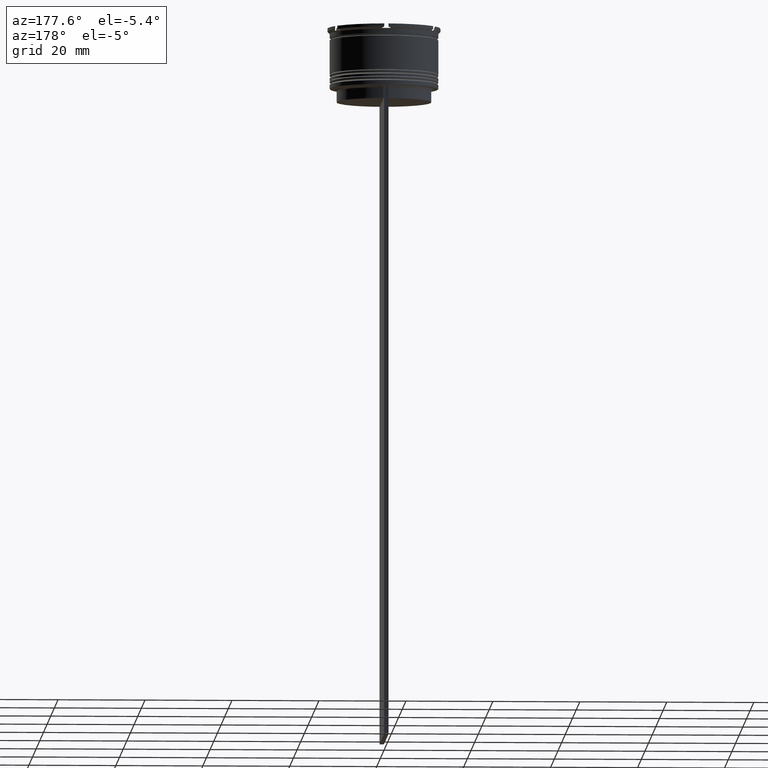
[diagram: clean part render]
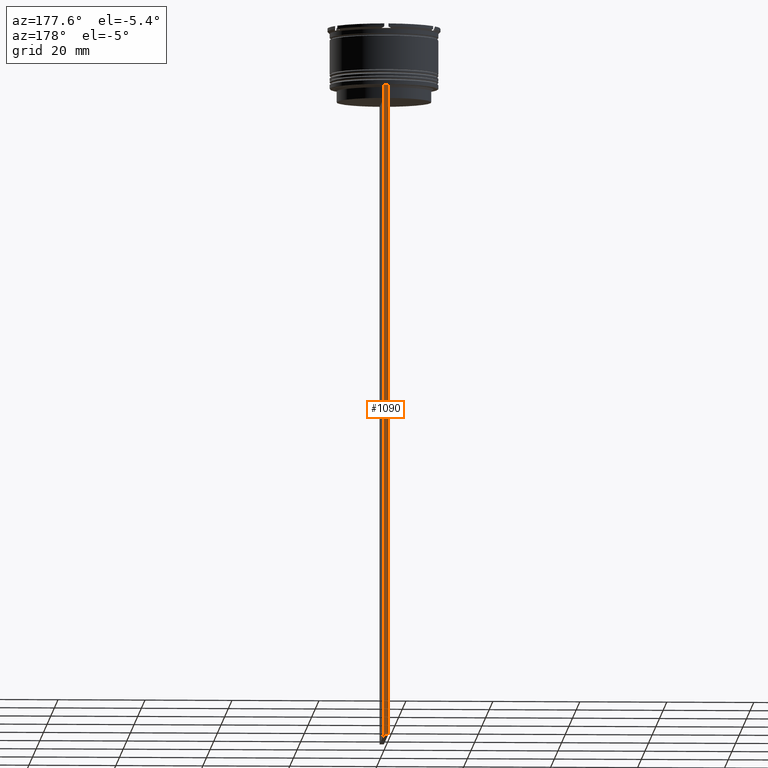
[diagram: same view with one face highlighted and labeled with its STEP entity id]
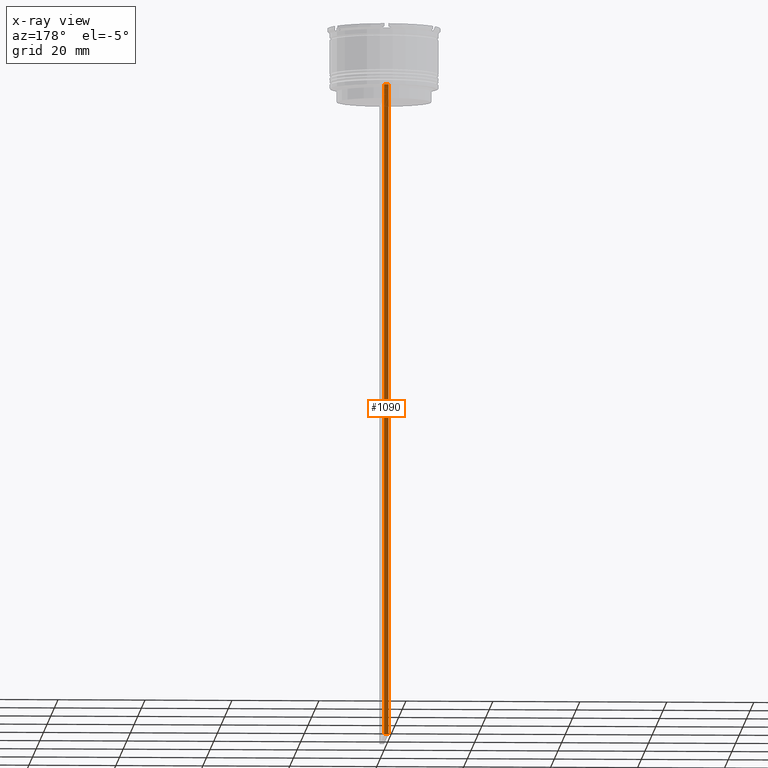
[diagram: x-ray of the same camera — body ghosted, the highlighted face saturated]
A machine part, auxiliary view. The second image highlights one B-rep face of the part: STEP entity #1090.
The next image is the same camera in x-ray: the body ghosted, the highlighted face saturated — about 0% of this face is hidden behind the body in this view.
In plain terms, the highlighted planar face has unit normal (0, -1, -0).
Its self-contained STEP definition (entity closure, byte-faithful):
#18 = DIRECTION ( 'NONE',  ( 0.000000000000000000, -1.000000000000000000, -0.000000000000000000 ) ) ;
#86 = DIRECTION ( 'NONE',  ( 0.000000000000000000, 0.000000000000000000, -1.000000000000000000 ) ) ;
#114 = ORIENTED_EDGE ( 'NONE', *, *, #2144, .T. ) ;
#177 = VECTOR ( 'NONE', #2384, 1000.000000000000000 ) ;
#213 = ORIENTED_EDGE ( 'NONE', *, *, #492, .F. ) ;
#241 = PLANE ( 'NONE',  #960 ) ;
#346 = DIRECTION ( 'NONE',  ( 0.000000000000000000, 0.000000000000000000, -1.000000000000000000 ) ) ;
#399 = LINE ( 'NONE', #414, #177 ) ;
#401 = ORIENTED_EDGE ( 'NONE', *, *, #1380, .T. ) ;
#414 = CARTESIAN_POINT ( 'NONE',  ( 0.5000000000000000000, 12.50000000000000711, -163.9999999999999716 ) ) ;
#422 = CARTESIAN_POINT ( 'NONE',  ( -0.5000000000000000000, 12.50000000000000711, -163.9999999999999716 ) ) ;
#473 = EDGE_CURVE ( 'NONE', #702, #2030, #1215, .T. ) ;
#492 = EDGE_CURVE ( 'NONE', #818, #577, #566, .T. ) ;
#515 = DIRECTION ( 'NONE',  ( 0.000000000000000000, 0.000000000000000000, -1.000000000000000000 ) ) ;
#549 = VECTOR ( 'NONE', #795, 1000.000000000000000 ) ;
#566 = LINE ( 'NONE', #2116, #1745 ) ;
#577 = VERTEX_POINT ( 'NONE', #422 ) ;
#702 = VERTEX_POINT ( 'NONE', #2004 ) ;
#795 = DIRECTION ( 'NONE',  ( 1.000000000000000000, 0.000000000000000000, 0.000000000000000000 ) ) ;
#818 = VERTEX_POINT ( 'NONE', #2016 ) ;
#960 = AXIS2_PLACEMENT_3D ( 'NONE', #2053, #18, #515 ) ;
#1090 = ADVANCED_FACE ( 'NONE', ( #2685 ), #241, .F. ) ;
#1215 = LINE ( 'NONE', #1406, #1233 ) ;
#1233 = VECTOR ( 'NONE', #86, 1000.000000000000000 ) ;
#1380 = EDGE_CURVE ( 'NONE', #2030, #577, #399, .T. ) ;
#1403 = CARTESIAN_POINT ( 'NONE',  ( 0.5000000000000000000, 12.50000000000000711, -14.00000000000000178 ) ) ;
#1406 = CARTESIAN_POINT ( 'NONE',  ( 0.5000000000000000000, 12.50000000000000711, 11.01999200639360765 ) ) ;
#1525 = ORIENTED_EDGE ( 'NONE', *, *, #473, .T. ) ;
#1568 = CARTESIAN_POINT ( 'NONE',  ( 0.5000000000000000000, 12.50000000000000711, -163.9999999999999716 ) ) ;
#1634 = LINE ( 'NONE', #1403, #549 ) ;
#1745 = VECTOR ( 'NONE', #346, 1000.000000000000000 ) ;
#2004 = CARTESIAN_POINT ( 'NONE',  ( 0.5000000000000000000, 12.50000000000000711, -14.00000000000000178 ) ) ;
#2016 = CARTESIAN_POINT ( 'NONE',  ( -0.5000000000000000000, 12.50000000000000711, -14.00000000000000178 ) ) ;
#2030 = VERTEX_POINT ( 'NONE', #1568 ) ;
#2053 = CARTESIAN_POINT ( 'NONE',  ( 0.5000000000000000000, 12.50000000000000711, 11.01999200639360765 ) ) ;
#2116 = CARTESIAN_POINT ( 'NONE',  ( -0.5000000000000000000, 12.50000000000000711, 11.01999200639360765 ) ) ;
#2144 = EDGE_CURVE ( 'NONE', #818, #702, #1634, .T. ) ;
#2384 = DIRECTION ( 'NONE',  ( -1.000000000000000000, 0.000000000000000000, 0.000000000000000000 ) ) ;
#2596 = EDGE_LOOP ( 'NONE', ( #213, #114, #1525, #401 ) ) ;
#2685 = FACE_OUTER_BOUND ( 'NONE', #2596, .T. ) ;